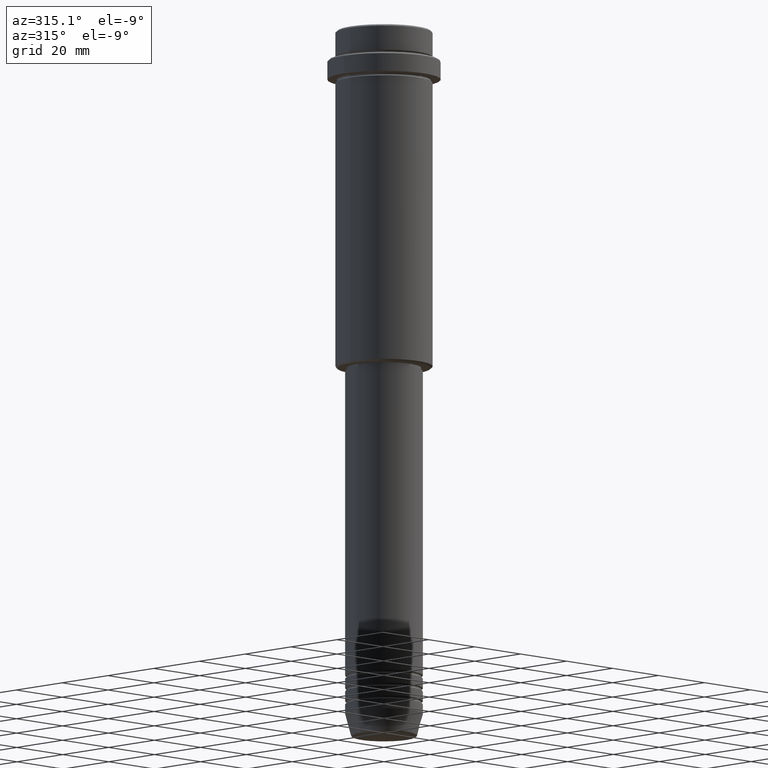
[diagram: clean part render]
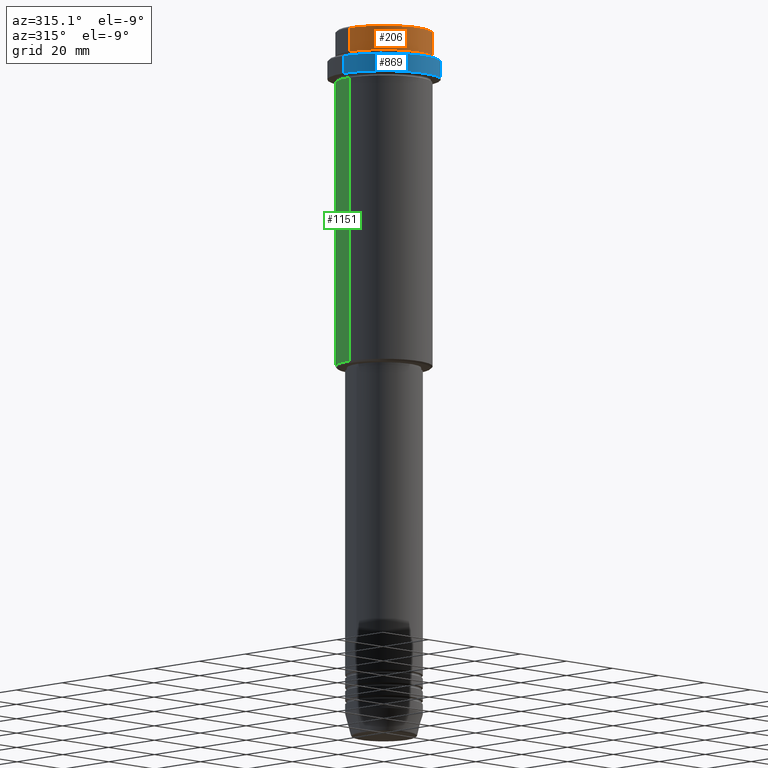
[diagram: same view with three faces highlighted in distinct colors, each labeled with its STEP entity id]
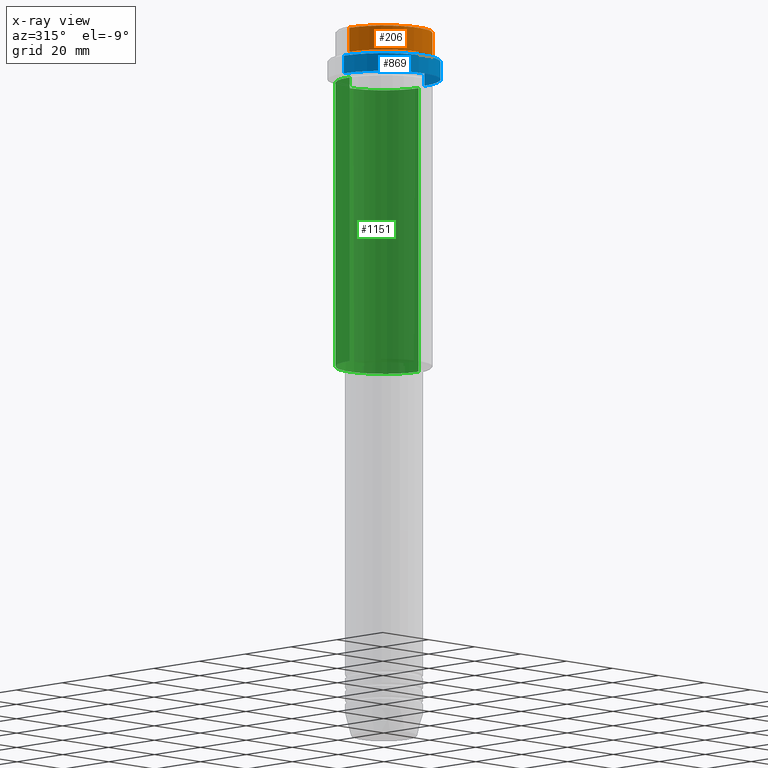
[diagram: x-ray of the same camera — body ghosted, the three highlighted faces saturated]
A machine part, auxiliary view with three faces highlighted in distinct colors.
The next image is the same camera in x-ray (body ghosted, the three faces saturated) — at least one of them is partly hidden behind the body in this view.
Their STEP definitions:

[orange] entity #206 — the highlighted cylindrical surface (partial cylindrical patch) has radius 15 mm, axis along (-0, -0, 1).
#21 = VECTOR ( 'NONE', #689, 1000.000000000000000 ) ;
#61 = ORIENTED_EDGE ( 'NONE', *, *, #1412, .T. ) ;
#180 = CYLINDRICAL_SURFACE ( 'NONE', #665, 15.00000000000000000 ) ;
#192 = DIRECTION ( 'NONE',  ( -0.000000000000000000, -0.000000000000000000, 1.000000000000000000 ) ) ;
#206 = ADVANCED_FACE ( 'NONE', ( #1159 ), #180, .T. ) ;
#212 = DIRECTION ( 'NONE',  ( -0.000000000000000000, -0.000000000000000000, 1.000000000000000000 ) ) ;
#240 = VERTEX_POINT ( 'NONE', #1294 ) ;
#270 = VERTEX_POINT ( 'NONE', #919 ) ;
#284 = LINE ( 'NONE', #1139, #21 ) ;
#288 = CARTESIAN_POINT ( 'NONE',  ( 0.000000000000000000, 0.000000000000000000, -7.999999999999998224 ) ) ;
#351 = EDGE_CURVE ( 'NONE', #659, #270, #401, .T. ) ;
#376 = CARTESIAN_POINT ( 'NONE',  ( 15.00000000000000000, 0.000000000000000000, -0.5000000000000108802 ) ) ;
#401 = LINE ( 'NONE', #1171, #899 ) ;
#487 = CARTESIAN_POINT ( 'NONE',  ( -15.00000000000000000, 1.836970198721029589E-15, -7.999999999999998224 ) ) ;
#502 = ORIENTED_EDGE ( 'NONE', *, *, #690, .T. ) ;
#506 = CIRCLE ( 'NONE', #1231, 15.00000000000000000 ) ;
#517 = DIRECTION ( 'NONE',  ( 1.000000000000000000, 0.000000000000000000, 0.000000000000000000 ) ) ;
#539 = EDGE_CURVE ( 'NONE', #667, #270, #807, .T. ) ;
#615 = DIRECTION ( 'NONE',  ( 1.000000000000000000, 0.000000000000000000, 0.000000000000000000 ) ) ;
#659 = VERTEX_POINT ( 'NONE', #487 ) ;
#665 = AXIS2_PLACEMENT_3D ( 'NONE', #1415, #212, #973 ) ;
#667 = VERTEX_POINT ( 'NONE', #376 ) ;
#689 = DIRECTION ( 'NONE',  ( -0.000000000000000000, -0.000000000000000000, 1.000000000000000000 ) ) ;
#690 = EDGE_CURVE ( 'NONE', #659, #240, #506, .T. ) ;
#805 = ORIENTED_EDGE ( 'NONE', *, *, #351, .F. ) ;
#807 = CIRCLE ( 'NONE', #1177, 15.00000000000000000 ) ;
#854 = ORIENTED_EDGE ( 'NONE', *, *, #539, .T. ) ;
#868 = EDGE_LOOP ( 'NONE', ( #805, #502, #61, #854 ) ) ;
#899 = VECTOR ( 'NONE', #192, 1000.000000000000000 ) ;
#919 = CARTESIAN_POINT ( 'NONE',  ( -15.00000000000000000, 1.836970198721029589E-15, -0.5000000000000108802 ) ) ;
#940 = DIRECTION ( 'NONE',  ( 0.000000000000000000, 0.000000000000000000, -1.000000000000000000 ) ) ;
#973 = DIRECTION ( 'NONE',  ( 1.000000000000000000, 0.000000000000000000, 0.000000000000000000 ) ) ;
#1069 = CARTESIAN_POINT ( 'NONE',  ( 0.000000000000000000, 0.000000000000000000, -0.5000000000000108802 ) ) ;
#1138 = DIRECTION ( 'NONE',  ( -0.000000000000000000, -0.000000000000000000, 1.000000000000000000 ) ) ;
#1139 = CARTESIAN_POINT ( 'NONE',  ( 15.00000000000000000, 0.000000000000000000, 0.000000000000000000 ) ) ;
#1159 = FACE_OUTER_BOUND ( 'NONE', #868, .T. ) ;
#1171 = CARTESIAN_POINT ( 'NONE',  ( -15.00000000000000000, 1.836970198721029589E-15, 0.000000000000000000 ) ) ;
#1177 = AXIS2_PLACEMENT_3D ( 'NONE', #1069, #940, #517 ) ;
#1231 = AXIS2_PLACEMENT_3D ( 'NONE', #288, #1138, #615 ) ;
#1294 = CARTESIAN_POINT ( 'NONE',  ( 15.00000000000000000, 0.000000000000000000, -7.999999999999998224 ) ) ;
#1412 = EDGE_CURVE ( 'NONE', #240, #667, #284, .T. ) ;
#1415 = CARTESIAN_POINT ( 'NONE',  ( 0.000000000000000000, 0.000000000000000000, 0.000000000000000000 ) ) ;

[blue] entity #869 — the highlighted cylindrical surface (partial cylindrical patch) has radius 17.5 mm, axis along (-0, -0, 1).
#32 = VERTEX_POINT ( 'NONE', #261 ) ;
#66 = CARTESIAN_POINT ( 'NONE',  ( -17.50000000000000000, 2.143131898507868248E-15, -15.00000000000000178 ) ) ;
#90 = CARTESIAN_POINT ( 'NONE',  ( 17.50000000000000000, 0.000000000000000000, -9.500000000000028422 ) ) ;
#123 = DIRECTION ( 'NONE',  ( -0.000000000000000000, -0.000000000000000000, 1.000000000000000000 ) ) ;
#145 = CARTESIAN_POINT ( 'NONE',  ( 0.000000000000000000, 0.000000000000000000, -9.500000000000028422 ) ) ;
#163 = ORIENTED_EDGE ( 'NONE', *, *, #1354, .T. ) ;
#187 = DIRECTION ( 'NONE',  ( 1.000000000000000000, 0.000000000000000000, 0.000000000000000000 ) ) ;
#261 = CARTESIAN_POINT ( 'NONE',  ( 17.50000000000000000, 0.000000000000000000, -15.00000000000000178 ) ) ;
#279 = CARTESIAN_POINT ( 'NONE',  ( 17.50000000000000000, 0.000000000000000000, 0.000000000000000000 ) ) ;
#292 = AXIS2_PLACEMENT_3D ( 'NONE', #1323, #123, #346 ) ;
#339 = EDGE_CURVE ( 'NONE', #1119, #32, #1129, .T. ) ;
#346 = DIRECTION ( 'NONE',  ( 1.000000000000000000, 0.000000000000000000, 0.000000000000000000 ) ) ;
#394 = EDGE_CURVE ( 'NONE', #732, #1209, #1203, .T. ) ;
#433 = FACE_OUTER_BOUND ( 'NONE', #591, .T. ) ;
#442 = VECTOR ( 'NONE', #803, 1000.000000000000000 ) ;
#446 = ORIENTED_EDGE ( 'NONE', *, *, #1397, .F. ) ;
#540 = ORIENTED_EDGE ( 'NONE', *, *, #394, .T. ) ;
#591 = EDGE_LOOP ( 'NONE', ( #446, #1092, #163, #540 ) ) ;
#729 = DIRECTION ( 'NONE',  ( -0.000000000000000000, -0.000000000000000000, 1.000000000000000000 ) ) ;
#732 = VERTEX_POINT ( 'NONE', #90 ) ;
#803 = DIRECTION ( 'NONE',  ( -0.000000000000000000, -0.000000000000000000, 1.000000000000000000 ) ) ;
#812 = LINE ( 'NONE', #279, #831 ) ;
#826 = AXIS2_PLACEMENT_3D ( 'NONE', #145, #1014, #1243 ) ;
#831 = VECTOR ( 'NONE', #1024, 1000.000000000000000 ) ;
#869 = ADVANCED_FACE ( 'NONE', ( #433 ), #996, .T. ) ;
#996 = CYLINDRICAL_SURFACE ( 'NONE', #292, 17.50000000000000000 ) ;
#1009 = CARTESIAN_POINT ( 'NONE',  ( -17.50000000000000000, 2.143131898507868248E-15, -9.500000000000028422 ) ) ;
#1014 = DIRECTION ( 'NONE',  ( 0.000000000000000000, 0.000000000000000000, -1.000000000000000000 ) ) ;
#1024 = DIRECTION ( 'NONE',  ( -0.000000000000000000, -0.000000000000000000, 1.000000000000000000 ) ) ;
#1092 = ORIENTED_EDGE ( 'NONE', *, *, #339, .T. ) ;
#1119 = VERTEX_POINT ( 'NONE', #66 ) ;
#1129 = CIRCLE ( 'NONE', #1340, 17.50000000000000000 ) ;
#1154 = CARTESIAN_POINT ( 'NONE',  ( -17.50000000000000000, 2.143131898507868248E-15, 0.000000000000000000 ) ) ;
#1165 = CARTESIAN_POINT ( 'NONE',  ( 0.000000000000000000, 0.000000000000000000, -15.00000000000000178 ) ) ;
#1203 = CIRCLE ( 'NONE', #826, 17.50000000000000000 ) ;
#1209 = VERTEX_POINT ( 'NONE', #1009 ) ;
#1243 = DIRECTION ( 'NONE',  ( 1.000000000000000000, 0.000000000000000000, 0.000000000000000000 ) ) ;
#1267 = LINE ( 'NONE', #1154, #442 ) ;
#1323 = CARTESIAN_POINT ( 'NONE',  ( 0.000000000000000000, 0.000000000000000000, 0.000000000000000000 ) ) ;
#1340 = AXIS2_PLACEMENT_3D ( 'NONE', #1165, #729, #187 ) ;
#1354 = EDGE_CURVE ( 'NONE', #32, #732, #812, .T. ) ;
#1397 = EDGE_CURVE ( 'NONE', #1119, #1209, #1267, .T. ) ;

[green] entity #1151 — the highlighted cylindrical surface (partial cylindrical patch) has radius 15 mm, axis along (-0, -0, 1).
#12 = CARTESIAN_POINT ( 'NONE',  ( 0.000000000000000000, 0.000000000000000000, -104.5000000000000000 ) ) ;
#14 = ORIENTED_EDGE ( 'NONE', *, *, #850, .T. ) ;
#49 = EDGE_LOOP ( 'NONE', ( #14, #1359, #1250, #1338 ) ) ;
#73 = CYLINDRICAL_SURFACE ( 'NONE', #294, 15.00000000000000000 ) ;
#111 = VERTEX_POINT ( 'NONE', #614 ) ;
#169 = CARTESIAN_POINT ( 'NONE',  ( 15.00000000000000178, 0.000000000000000000, -16.00000000000000000 ) ) ;
#172 = EDGE_CURVE ( 'NONE', #488, #1404, #736, .T. ) ;
#216 = FACE_OUTER_BOUND ( 'NONE', #49, .T. ) ;
#237 = VERTEX_POINT ( 'NONE', #407 ) ;
#294 = AXIS2_PLACEMENT_3D ( 'NONE', #1170, #761, #619 ) ;
#407 = CARTESIAN_POINT ( 'NONE',  ( -15.00000000000000355, 1.836970198721029983E-15, -16.00000000000000000 ) ) ;
#410 = CARTESIAN_POINT ( 'NONE',  ( 15.00000000000000000, 0.000000000000000000, 0.000000000000000000 ) ) ;
#420 = AXIS2_PLACEMENT_3D ( 'NONE', #1164, #422, #1051 ) ;
#422 = DIRECTION ( 'NONE',  ( -0.000000000000000000, -0.000000000000000000, 1.000000000000000000 ) ) ;
#464 = LINE ( 'NONE', #1220, #1252 ) ;
#488 = VERTEX_POINT ( 'NONE', #602 ) ;
#494 = EDGE_CURVE ( 'NONE', #111, #237, #464, .T. ) ;
#602 = CARTESIAN_POINT ( 'NONE',  ( 15.00000000000000000, 0.000000000000000000, -104.5000000000000000 ) ) ;
#614 = CARTESIAN_POINT ( 'NONE',  ( -15.00000000000000000, 1.836970198721029589E-15, -104.5000000000000000 ) ) ;
#619 = DIRECTION ( 'NONE',  ( 1.000000000000000000, 0.000000000000000000, 0.000000000000000000 ) ) ;
#720 = AXIS2_PLACEMENT_3D ( 'NONE', #12, #767, #875 ) ;
#736 = LINE ( 'NONE', #410, #1059 ) ;
#761 = DIRECTION ( 'NONE',  ( -0.000000000000000000, -0.000000000000000000, 1.000000000000000000 ) ) ;
#767 = DIRECTION ( 'NONE',  ( -0.000000000000000000, -0.000000000000000000, 1.000000000000000000 ) ) ;
#841 = DIRECTION ( 'NONE',  ( -0.000000000000000000, -0.000000000000000000, 1.000000000000000000 ) ) ;
#850 = EDGE_CURVE ( 'NONE', #488, #111, #1341, .T. ) ;
#875 = DIRECTION ( 'NONE',  ( -1.000000000000000000, 0.000000000000000000, 0.000000000000000000 ) ) ;
#885 = DIRECTION ( 'NONE',  ( -0.000000000000000000, -0.000000000000000000, 1.000000000000000000 ) ) ;
#1051 = DIRECTION ( 'NONE',  ( 1.000000000000000000, 0.000000000000000000, 0.000000000000000000 ) ) ;
#1059 = VECTOR ( 'NONE', #841, 1000.000000000000000 ) ;
#1151 = ADVANCED_FACE ( 'NONE', ( #216 ), #73, .T. ) ;
#1164 = CARTESIAN_POINT ( 'NONE',  ( 0.000000000000000000, 0.000000000000000000, -16.00000000000000000 ) ) ;
#1169 = EDGE_CURVE ( 'NONE', #1404, #237, #1277, .T. ) ;
#1170 = CARTESIAN_POINT ( 'NONE',  ( 0.000000000000000000, 0.000000000000000000, 0.000000000000000000 ) ) ;
#1220 = CARTESIAN_POINT ( 'NONE',  ( -15.00000000000000000, 1.836970198721029589E-15, 0.000000000000000000 ) ) ;
#1250 = ORIENTED_EDGE ( 'NONE', *, *, #1169, .F. ) ;
#1252 = VECTOR ( 'NONE', #885, 1000.000000000000000 ) ;
#1277 = CIRCLE ( 'NONE', #420, 15.00000000000000178 ) ;
#1338 = ORIENTED_EDGE ( 'NONE', *, *, #172, .F. ) ;
#1341 = CIRCLE ( 'NONE', #720, 15.00000000000000000 ) ;
#1359 = ORIENTED_EDGE ( 'NONE', *, *, #494, .T. ) ;
#1404 = VERTEX_POINT ( 'NONE', #169 ) ;